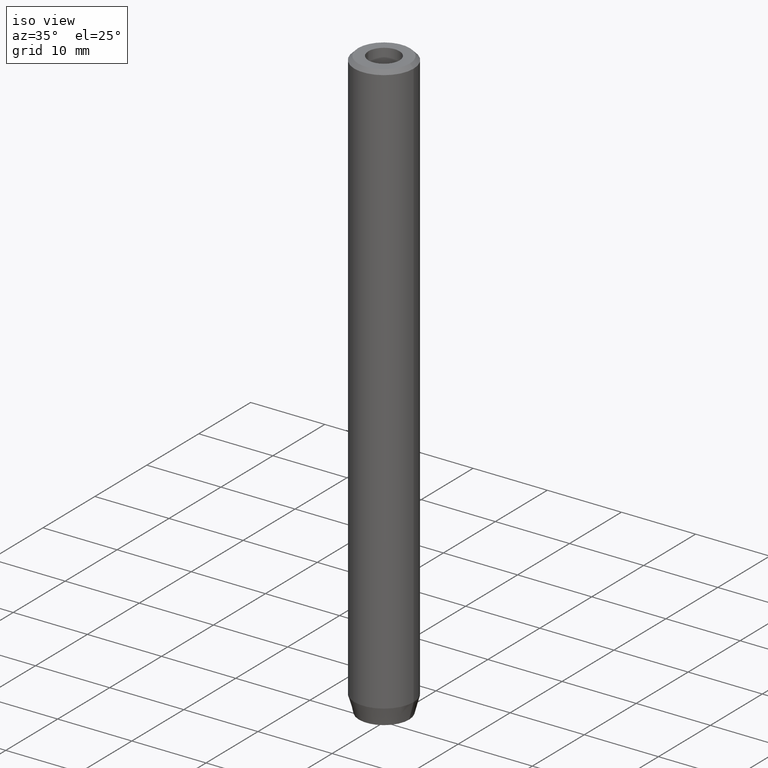
[diagram: clean part render]
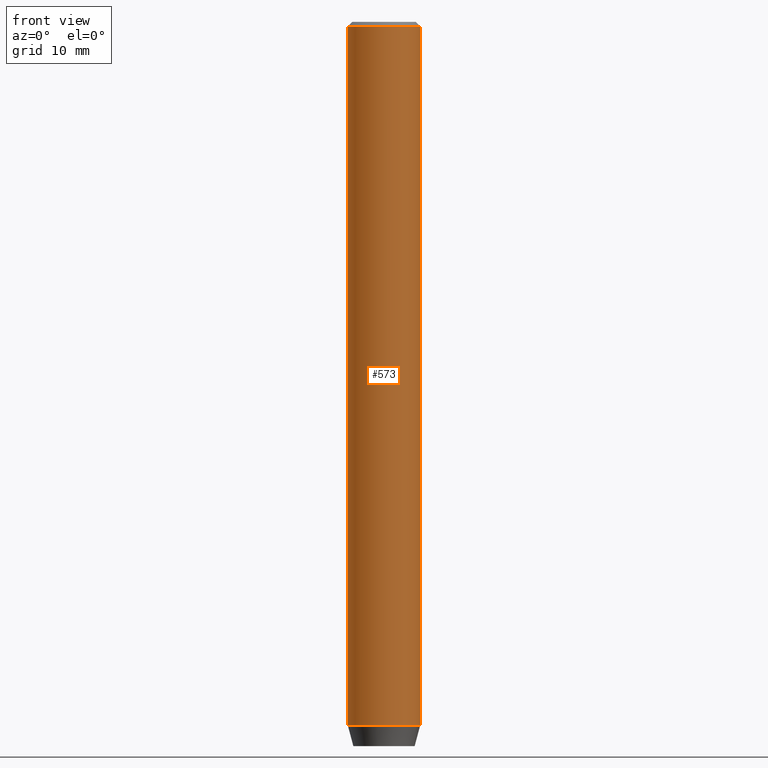
[diagram: tour spotlight — one face highlighted and labeled with its STEP entity id]
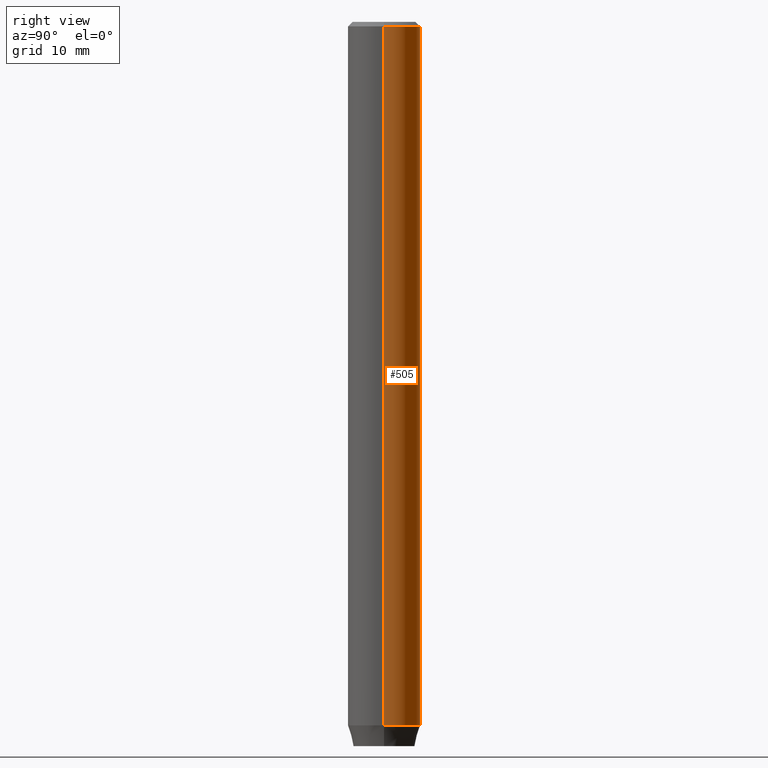
[diagram: tour spotlight — one face highlighted and labeled with its STEP entity id]
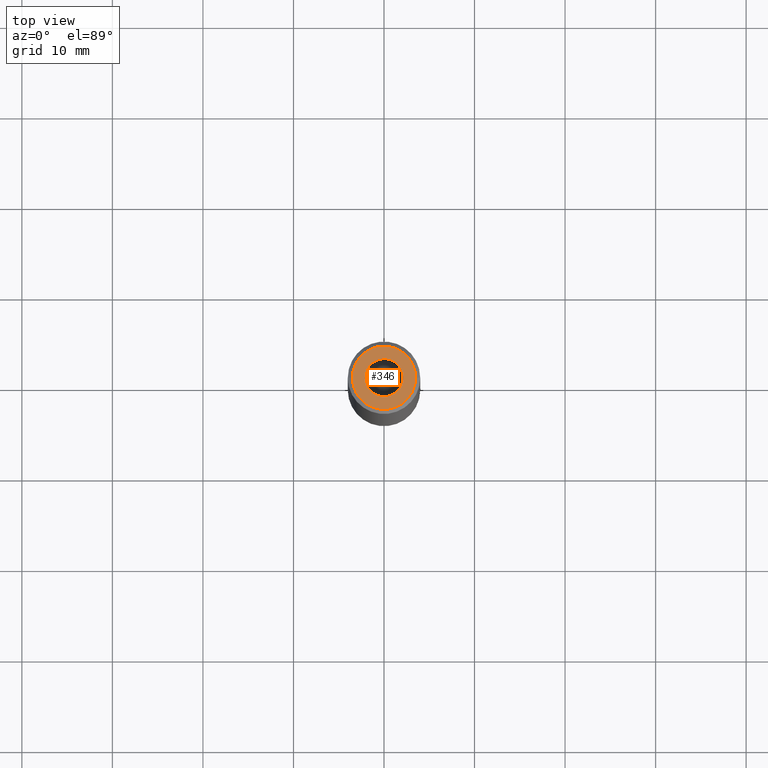
[diagram: tour spotlight — one face highlighted and labeled with its STEP entity id]
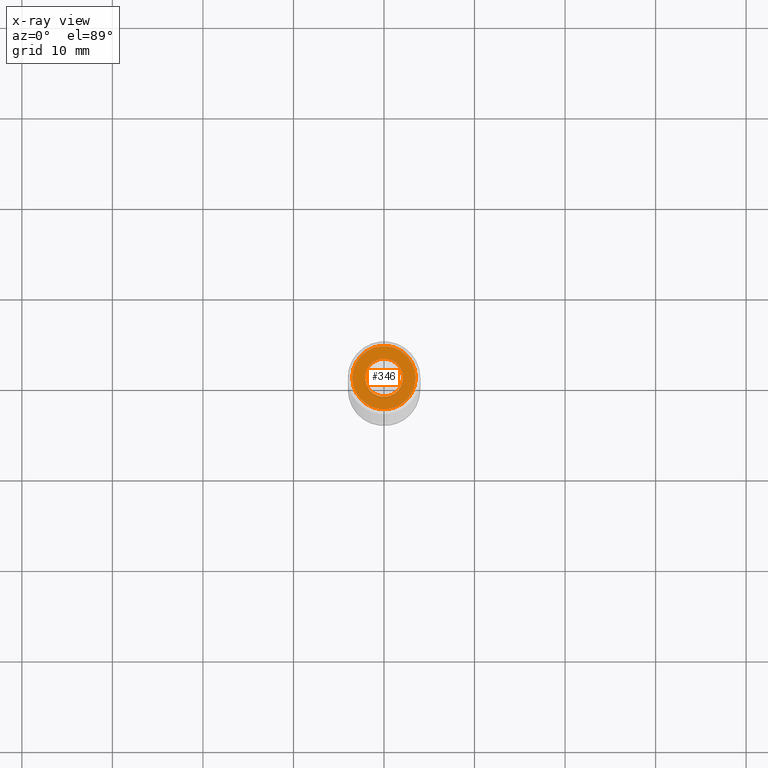
[diagram: x-ray of the same camera — body ghosted, this tour face saturated]
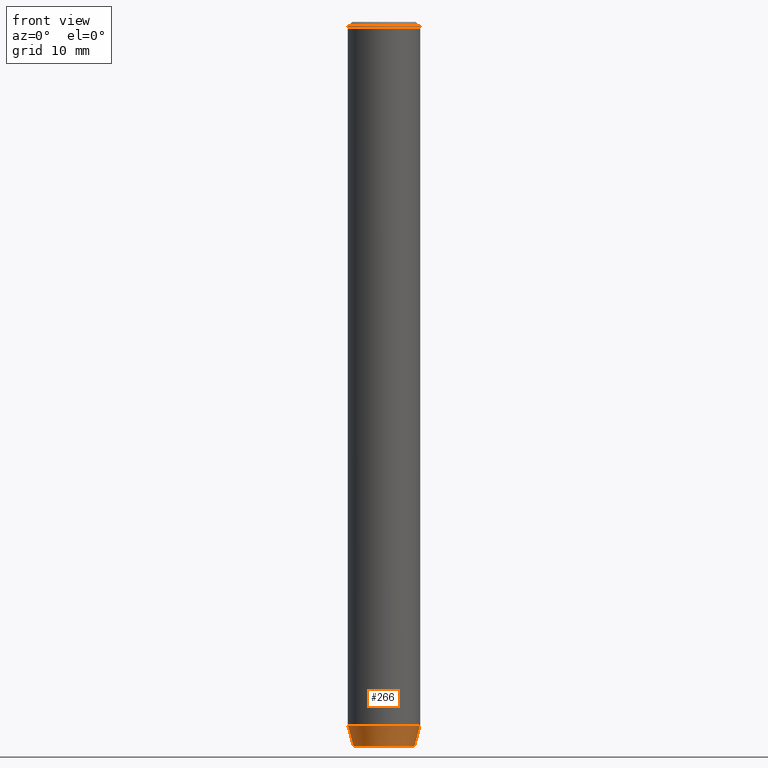
[diagram: tour spotlight — one face highlighted and labeled with its STEP entity id]
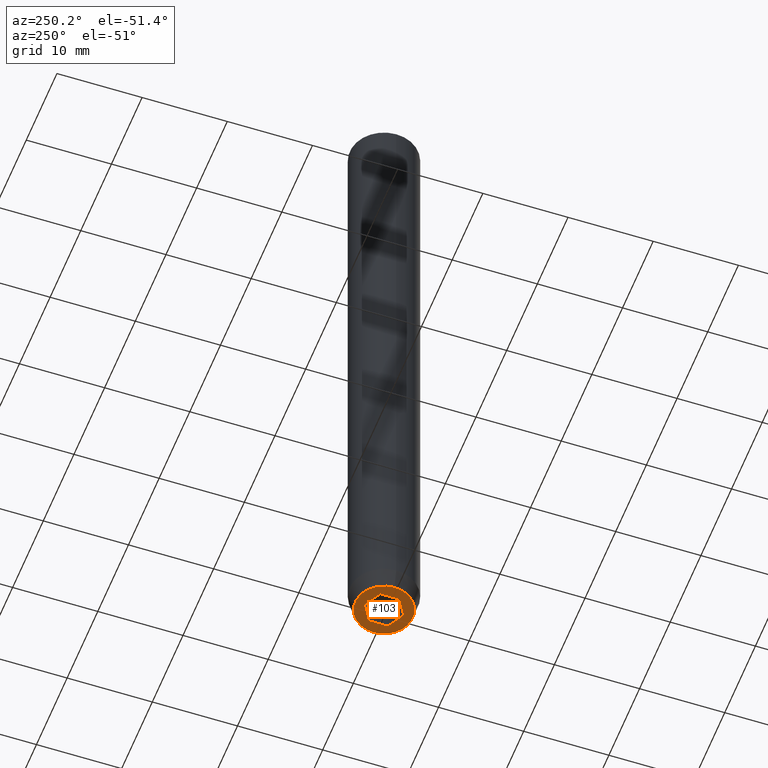
[diagram: tour spotlight — one face highlighted and labeled with its STEP entity id]
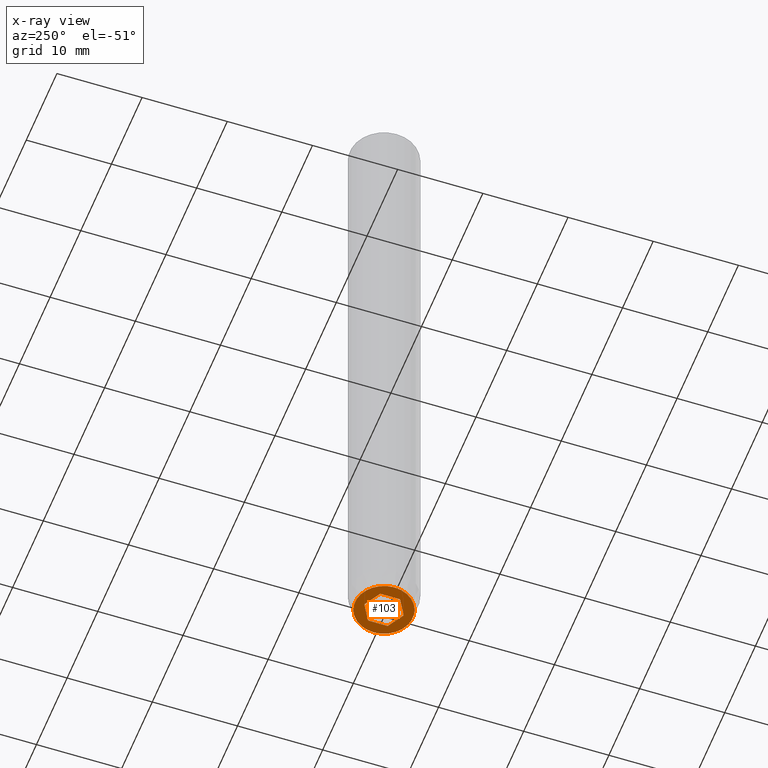
[diagram: x-ray of the same camera — body ghosted, this tour face saturated]
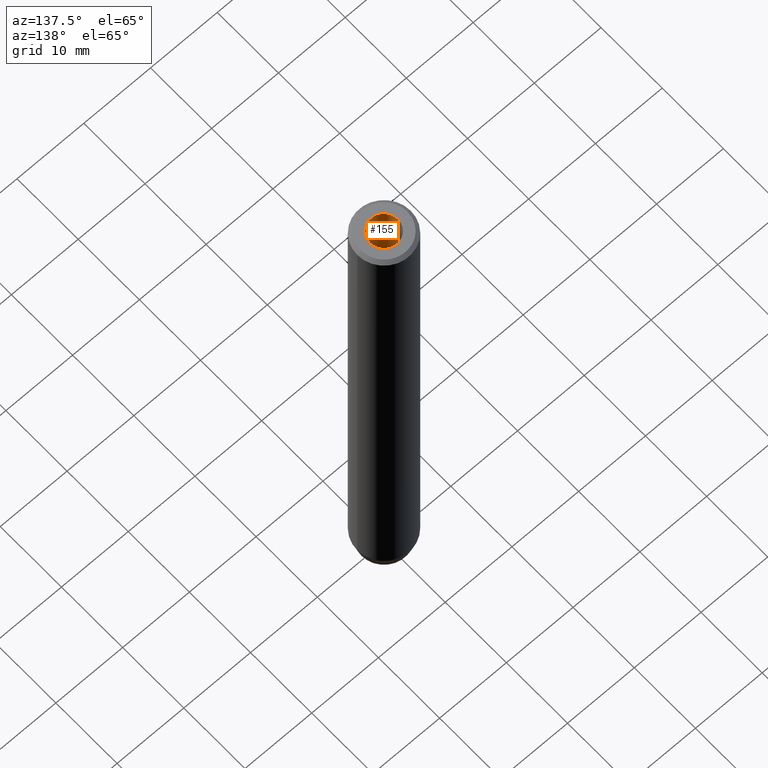
[diagram: tour spotlight — one face highlighted and labeled with its STEP entity id]
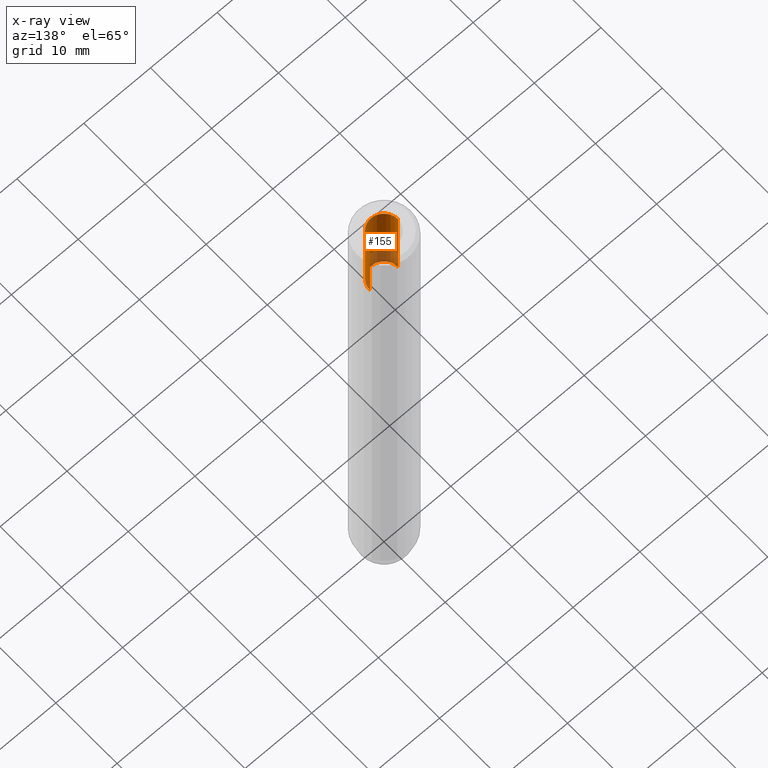
[diagram: x-ray of the same camera — body ghosted, this tour face saturated]
A machine part: a face-by-face anatomy tour. The part has 19 B-rep faces; the first image is the clean iso view, then the 6 largest visible faces are spotlighted one at a time (largest first), each with its STEP entity span.

Face 1 — front view, entity #573. In plain terms, the highlighted cylindrical surface (edge-blend (fillet) strip) has radius 4 mm, axis along (-0, -0, 1).
Definition (entity closure, byte-faithful):
#10 = DIRECTION ( 'NONE',  ( 1.000000000000000000, 0.000000000000000000, 0.000000000000000000 ) ) ;
#35 = LINE ( 'NONE', #214, #391 ) ;
#42 = AXIS2_PLACEMENT_3D ( 'NONE', #341, #390, #169 ) ;
#48 = CARTESIAN_POINT ( 'NONE',  ( -4.000000000000000000, 4.898587196589412829E-16, -0.4999999999999900080 ) ) ;
#55 = AXIS2_PLACEMENT_3D ( 'NONE', #361, #549, #100 ) ;
#78 = FACE_OUTER_BOUND ( 'NONE', #259, .T. ) ;
#100 = DIRECTION ( 'NONE',  ( 1.000000000000000000, 0.000000000000000000, 0.000000000000000000 ) ) ;
#126 = EDGE_CURVE ( 'NONE', #256, #472, #344, .T. ) ;
#153 = DIRECTION ( 'NONE',  ( -0.000000000000000000, -0.000000000000000000, 1.000000000000000000 ) ) ;
#168 = ORIENTED_EDGE ( 'NONE', *, *, #541, .T. ) ;
#169 = DIRECTION ( 'NONE',  ( 1.000000000000000000, 0.000000000000000000, 0.000000000000000000 ) ) ;
#176 = ORIENTED_EDGE ( 'NONE', *, *, #527, .F. ) ;
#207 = AXIS2_PLACEMENT_3D ( 'NONE', #423, #153, #10 ) ;
#214 = CARTESIAN_POINT ( 'NONE',  ( 4.000000000000000000, 0.000000000000000000, 0.000000000000000000 ) ) ;
#231 = CIRCLE ( 'NONE', #55, 4.000000000000000000 ) ;
#256 = VERTEX_POINT ( 'NONE', #475 ) ;
#259 = EDGE_LOOP ( 'NONE', ( #176, #476, #443, #168 ) ) ;
#302 = DIRECTION ( 'NONE',  ( -0.000000000000000000, -0.000000000000000000, 1.000000000000000000 ) ) ;
#322 = DIRECTION ( 'NONE',  ( -0.000000000000000000, -0.000000000000000000, 1.000000000000000000 ) ) ;
#326 = EDGE_CURVE ( 'NONE', #472, #406, #35, .T. ) ;
#341 = CARTESIAN_POINT ( 'NONE',  ( 0.000000000000000000, 0.000000000000000000, 0.000000000000000000 ) ) ;
#344 = CIRCLE ( 'NONE', #207, 4.000000000000000000 ) ;
#361 = CARTESIAN_POINT ( 'NONE',  ( 0.000000000000000000, 0.000000000000000000, -0.4999999999999900080 ) ) ;
#373 = LINE ( 'NONE', #554, #491 ) ;
#390 = DIRECTION ( 'NONE',  ( -0.000000000000000000, -0.000000000000000000, 1.000000000000000000 ) ) ;
#391 = VECTOR ( 'NONE', #302, 1000.000000000000000 ) ;
#406 = VERTEX_POINT ( 'NONE', #450 ) ;
#410 = VERTEX_POINT ( 'NONE', #48 ) ;
#423 = CARTESIAN_POINT ( 'NONE',  ( 0.000000000000000000, 0.000000000000000000, -77.70000000000001705 ) ) ;
#443 = ORIENTED_EDGE ( 'NONE', *, *, #326, .T. ) ;
#450 = CARTESIAN_POINT ( 'NONE',  ( 4.000000000000000000, 0.000000000000000000, -0.4999999999999900080 ) ) ;
#472 = VERTEX_POINT ( 'NONE', #504 ) ;
#475 = CARTESIAN_POINT ( 'NONE',  ( -4.000000000000000000, 4.898587196589412829E-16, -77.70000000000001705 ) ) ;
#476 = ORIENTED_EDGE ( 'NONE', *, *, #126, .T. ) ;
#491 = VECTOR ( 'NONE', #322, 1000.000000000000000 ) ;
#504 = CARTESIAN_POINT ( 'NONE',  ( 4.000000000000000000, 0.000000000000000000, -77.70000000000001705 ) ) ;
#527 = EDGE_CURVE ( 'NONE', #256, #410, #373, .T. ) ;
#541 = EDGE_CURVE ( 'NONE', #406, #410, #231, .T. ) ;
#549 = DIRECTION ( 'NONE',  ( 0.000000000000000000, 0.000000000000000000, -1.000000000000000000 ) ) ;
#554 = CARTESIAN_POINT ( 'NONE',  ( -4.000000000000000000, 4.898587196589412829E-16, 0.000000000000000000 ) ) ;
#567 = CYLINDRICAL_SURFACE ( 'NONE', #42, 4.000000000000000000 ) ;
#573 = ADVANCED_FACE ( 'NONE', ( #78 ), #567, .T. ) ;

Face 2 — right view, entity #505. In plain terms, the highlighted cylindrical surface (edge-blend (fillet) strip) has radius 4 mm, axis along (-0, -0, 1).
Definition (entity closure, byte-faithful):
#27 = DIRECTION ( 'NONE',  ( 1.000000000000000000, 0.000000000000000000, 0.000000000000000000 ) ) ;
#35 = LINE ( 'NONE', #214, #391 ) ;
#38 = AXIS2_PLACEMENT_3D ( 'NONE', #328, #453, #407 ) ;
#48 = CARTESIAN_POINT ( 'NONE',  ( -4.000000000000000000, 4.898587196589412829E-16, -0.4999999999999900080 ) ) ;
#91 = AXIS2_PLACEMENT_3D ( 'NONE', #290, #565, #27 ) ;
#102 = ORIENTED_EDGE ( 'NONE', *, *, #170, .T. ) ;
#149 = CARTESIAN_POINT ( 'NONE',  ( 0.000000000000000000, 0.000000000000000000, -0.4999999999999900080 ) ) ;
#170 = EDGE_CURVE ( 'NONE', #472, #256, #220, .T. ) ;
#179 = ORIENTED_EDGE ( 'NONE', *, *, #422, .T. ) ;
#184 = DIRECTION ( 'NONE',  ( 1.000000000000000000, 0.000000000000000000, 0.000000000000000000 ) ) ;
#198 = EDGE_LOOP ( 'NONE', ( #102, #444, #179, #300 ) ) ;
#214 = CARTESIAN_POINT ( 'NONE',  ( 4.000000000000000000, 0.000000000000000000, 0.000000000000000000 ) ) ;
#220 = CIRCLE ( 'NONE', #91, 4.000000000000000000 ) ;
#240 = CYLINDRICAL_SURFACE ( 'NONE', #38, 4.000000000000000000 ) ;
#241 = CIRCLE ( 'NONE', #483, 4.000000000000000000 ) ;
#256 = VERTEX_POINT ( 'NONE', #475 ) ;
#290 = CARTESIAN_POINT ( 'NONE',  ( 0.000000000000000000, 0.000000000000000000, -77.70000000000001705 ) ) ;
#300 = ORIENTED_EDGE ( 'NONE', *, *, #326, .F. ) ;
#302 = DIRECTION ( 'NONE',  ( -0.000000000000000000, -0.000000000000000000, 1.000000000000000000 ) ) ;
#322 = DIRECTION ( 'NONE',  ( -0.000000000000000000, -0.000000000000000000, 1.000000000000000000 ) ) ;
#326 = EDGE_CURVE ( 'NONE', #472, #406, #35, .T. ) ;
#328 = CARTESIAN_POINT ( 'NONE',  ( 0.000000000000000000, 0.000000000000000000, 0.000000000000000000 ) ) ;
#373 = LINE ( 'NONE', #554, #491 ) ;
#391 = VECTOR ( 'NONE', #302, 1000.000000000000000 ) ;
#406 = VERTEX_POINT ( 'NONE', #450 ) ;
#407 = DIRECTION ( 'NONE',  ( 1.000000000000000000, 0.000000000000000000, 0.000000000000000000 ) ) ;
#410 = VERTEX_POINT ( 'NONE', #48 ) ;
#422 = EDGE_CURVE ( 'NONE', #410, #406, #241, .T. ) ;
#444 = ORIENTED_EDGE ( 'NONE', *, *, #527, .T. ) ;
#450 = CARTESIAN_POINT ( 'NONE',  ( 4.000000000000000000, 0.000000000000000000, -0.4999999999999900080 ) ) ;
#453 = DIRECTION ( 'NONE',  ( -0.000000000000000000, -0.000000000000000000, 1.000000000000000000 ) ) ;
#457 = FACE_OUTER_BOUND ( 'NONE', #198, .T. ) ;
#472 = VERTEX_POINT ( 'NONE', #504 ) ;
#475 = CARTESIAN_POINT ( 'NONE',  ( -4.000000000000000000, 4.898587196589412829E-16, -77.70000000000001705 ) ) ;
#483 = AXIS2_PLACEMENT_3D ( 'NONE', #149, #515, #184 ) ;
#491 = VECTOR ( 'NONE', #322, 1000.000000000000000 ) ;
#504 = CARTESIAN_POINT ( 'NONE',  ( 4.000000000000000000, 0.000000000000000000, -77.70000000000001705 ) ) ;
#505 = ADVANCED_FACE ( 'NONE', ( #457 ), #240, .T. ) ;
#515 = DIRECTION ( 'NONE',  ( 0.000000000000000000, 0.000000000000000000, -1.000000000000000000 ) ) ;
#527 = EDGE_CURVE ( 'NONE', #256, #410, #373, .T. ) ;
#554 = CARTESIAN_POINT ( 'NONE',  ( -4.000000000000000000, 4.898587196589412829E-16, 0.000000000000000000 ) ) ;
#565 = DIRECTION ( 'NONE',  ( -0.000000000000000000, -0.000000000000000000, 1.000000000000000000 ) ) ;

Face 3 — top view, entity #346. An x-ray twin of the same camera follows (body ghosted, this face saturated) — the face is partly hidden behind the body. In plain terms, the highlighted planar face has unit normal (0, -0, 1).
Definition (entity closure, byte-faithful):
#5 = VERTEX_POINT ( 'NONE', #496 ) ;
#11 = DIRECTION ( 'NONE',  ( -0.000000000000000000, -0.000000000000000000, 1.000000000000000000 ) ) ;
#23 = VERTEX_POINT ( 'NONE', #134 ) ;
#32 = FACE_BOUND ( 'NONE', #551, .T. ) ;
#36 = EDGE_CURVE ( 'NONE', #473, #76, #260, .T. ) ;
#52 = CARTESIAN_POINT ( 'NONE',  ( -3.500000000000010214, 0.000000000000000000, 0.000000000000000000 ) ) ;
#65 = CIRCLE ( 'NONE', #324, 2.099999999999998757 ) ;
#76 = VERTEX_POINT ( 'NONE', #52 ) ;
#83 = CIRCLE ( 'NONE', #398, 3.500000000000010214 ) ;
#90 = DIRECTION ( 'NONE',  ( -0.000000000000000000, -0.000000000000000000, 1.000000000000000000 ) ) ;
#92 = EDGE_LOOP ( 'NONE', ( #467, #156 ) ) ;
#111 = AXIS2_PLACEMENT_3D ( 'NONE', #244, #201, #238 ) ;
#134 = CARTESIAN_POINT ( 'NONE',  ( 2.099999999999998757, 0.000000000000000000, -1.990051048614449116E-16 ) ) ;
#156 = ORIENTED_EDGE ( 'NONE', *, *, #36, .T. ) ;
#175 = FACE_OUTER_BOUND ( 'NONE', #92, .T. ) ;
#195 = DIRECTION ( 'NONE',  ( 1.000000000000000000, 0.000000000000000000, 0.000000000000000000 ) ) ;
#201 = DIRECTION ( 'NONE',  ( -0.000000000000000000, -0.000000000000000000, 1.000000000000000000 ) ) ;
#210 = EDGE_CURVE ( 'NONE', #5, #23, #500, .T. ) ;
#211 = DIRECTION ( 'NONE',  ( 1.000000000000000000, 0.000000000000000000, 0.000000000000000000 ) ) ;
#227 = DIRECTION ( 'NONE',  ( -0.000000000000000000, -0.000000000000000000, 1.000000000000000000 ) ) ;
#232 = CARTESIAN_POINT ( 'NONE',  ( 0.000000000000000000, 0.000000000000000000, -1.990051048614449116E-16 ) ) ;
#238 = DIRECTION ( 'NONE',  ( 1.000000000000000000, 0.000000000000000000, 0.000000000000000000 ) ) ;
#244 = CARTESIAN_POINT ( 'NONE',  ( 0.000000000000000000, 0.000000000000000000, -1.990051048614449116E-16 ) ) ;
#248 = ORIENTED_EDGE ( 'NONE', *, *, #469, .F. ) ;
#260 = CIRCLE ( 'NONE', #381, 3.500000000000010214 ) ;
#279 = CARTESIAN_POINT ( 'NONE',  ( 3.500000000000010214, 4.592425496802580875E-16, 0.000000000000000000 ) ) ;
#280 = CARTESIAN_POINT ( 'NONE',  ( 0.000000000000000000, 0.000000000000000000, 0.000000000000000000 ) ) ;
#324 = AXIS2_PLACEMENT_3D ( 'NONE', #232, #11, #195 ) ;
#346 = ADVANCED_FACE ( 'NONE', ( #32, #175 ), #536, .T. ) ;
#381 = AXIS2_PLACEMENT_3D ( 'NONE', #280, #90, #503 ) ;
#385 = DIRECTION ( 'NONE',  ( 0.000000000000000000, -0.000000000000000000, 1.000000000000000000 ) ) ;
#386 = ORIENTED_EDGE ( 'NONE', *, *, #210, .F. ) ;
#398 = AXIS2_PLACEMENT_3D ( 'NONE', #403, #227, #520 ) ;
#403 = CARTESIAN_POINT ( 'NONE',  ( 0.000000000000000000, 0.000000000000000000, 0.000000000000000000 ) ) ;
#411 = EDGE_CURVE ( 'NONE', #76, #473, #83, .T. ) ;
#467 = ORIENTED_EDGE ( 'NONE', *, *, #411, .T. ) ;
#469 = EDGE_CURVE ( 'NONE', #23, #5, #65, .T. ) ;
#473 = VERTEX_POINT ( 'NONE', #279 ) ;
#496 = CARTESIAN_POINT ( 'NONE',  ( -2.099999999999998757, 2.571758278209439985E-16, -1.990051048614449116E-16 ) ) ;
#500 = CIRCLE ( 'NONE', #111, 2.099999999999998757 ) ;
#503 = DIRECTION ( 'NONE',  ( 1.000000000000000000, 0.000000000000000000, 0.000000000000000000 ) ) ;
#508 = AXIS2_PLACEMENT_3D ( 'NONE', #582, #385, #211 ) ;
#520 = DIRECTION ( 'NONE',  ( 1.000000000000000000, 0.000000000000000000, 0.000000000000000000 ) ) ;
#536 = PLANE ( 'NONE',  #508 ) ;
#551 = EDGE_LOOP ( 'NONE', ( #248, #386 ) ) ;
#582 = CARTESIAN_POINT ( 'NONE',  ( 0.000000000000000000, 0.000000000000000000, 0.000000000000000000 ) ) ;

Face 4 — front view, entity #266. In plain terms, the highlighted conical surface has half-angle 15 deg.
Definition (entity closure, byte-faithful):
#2 = EDGE_CURVE ( 'NONE', #362, #129, #447, .T. ) ;
#10 = DIRECTION ( 'NONE',  ( 1.000000000000000000, 0.000000000000000000, 0.000000000000000000 ) ) ;
#41 = CARTESIAN_POINT ( 'NONE',  ( 0.000000000000000000, 0.000000000000000000, -77.70000000000001705 ) ) ;
#46 = DIRECTION ( 'NONE',  ( -0.000000000000000000, -0.000000000000000000, 1.000000000000000000 ) ) ;
#47 = ORIENTED_EDGE ( 'NONE', *, *, #126, .F. ) ;
#126 = EDGE_CURVE ( 'NONE', #256, #472, #344, .T. ) ;
#129 = VERTEX_POINT ( 'NONE', #419 ) ;
#153 = DIRECTION ( 'NONE',  ( -0.000000000000000000, -0.000000000000000000, 1.000000000000000000 ) ) ;
#173 = ORIENTED_EDGE ( 'NONE', *, *, #577, .F. ) ;
#203 = LINE ( 'NONE', #334, #208 ) ;
#207 = AXIS2_PLACEMENT_3D ( 'NONE', #423, #153, #10 ) ;
#208 = VECTOR ( 'NONE', #379, 1000.000000000000114 ) ;
#224 = ORIENTED_EDGE ( 'NONE', *, *, #2, .T. ) ;
#234 = DIRECTION ( 'NONE',  ( 1.000000000000000000, 0.000000000000000000, 0.000000000000000000 ) ) ;
#256 = VERTEX_POINT ( 'NONE', #475 ) ;
#266 = ADVANCED_FACE ( 'NONE', ( #310 ), #268, .T. ) ;
#268 = CONICAL_SURFACE ( 'NONE', #432, 4.000000000000000000, 0.2617993877991512397 ) ;
#308 = LINE ( 'NONE', #574, #350 ) ;
#310 = FACE_OUTER_BOUND ( 'NONE', #524, .T. ) ;
#334 = CARTESIAN_POINT ( 'NONE',  ( -4.000000000000000000, 4.898587196589412829E-16, -77.70000000000001705 ) ) ;
#343 = DIRECTION ( 'NONE',  ( 1.000000000000000000, 0.000000000000000000, 0.000000000000000000 ) ) ;
#344 = CIRCLE ( 'NONE', #207, 4.000000000000000000 ) ;
#350 = VECTOR ( 'NONE', #580, 1000.000000000000114 ) ;
#362 = VERTEX_POINT ( 'NONE', #587 ) ;
#366 = EDGE_CURVE ( 'NONE', #129, #472, #308, .T. ) ;
#379 = DIRECTION ( 'NONE',  ( -0.2588190451025225158, 3.169619151431785895E-17, 0.9659258262890677571 ) ) ;
#405 = CARTESIAN_POINT ( 'NONE',  ( 0.000000000000000000, 0.000000000000000000, -79.99999999999998579 ) ) ;
#419 = CARTESIAN_POINT ( 'NONE',  ( 3.383716857408421763, 0.000000000000000000, -79.99999999999998579 ) ) ;
#423 = CARTESIAN_POINT ( 'NONE',  ( 0.000000000000000000, 0.000000000000000000, -77.70000000000001705 ) ) ;
#432 = AXIS2_PLACEMENT_3D ( 'NONE', #41, #495, #343 ) ;
#435 = ORIENTED_EDGE ( 'NONE', *, *, #366, .T. ) ;
#447 = CIRCLE ( 'NONE', #555, 3.383716857408421763 ) ;
#472 = VERTEX_POINT ( 'NONE', #504 ) ;
#475 = CARTESIAN_POINT ( 'NONE',  ( -4.000000000000000000, 4.898587196589412829E-16, -77.70000000000001705 ) ) ;
#495 = DIRECTION ( 'NONE',  ( -0.000000000000000000, -0.000000000000000000, 1.000000000000000000 ) ) ;
#504 = CARTESIAN_POINT ( 'NONE',  ( 4.000000000000000000, 0.000000000000000000, -77.70000000000001705 ) ) ;
#524 = EDGE_LOOP ( 'NONE', ( #173, #224, #435, #47 ) ) ;
#555 = AXIS2_PLACEMENT_3D ( 'NONE', #405, #46, #234 ) ;
#574 = CARTESIAN_POINT ( 'NONE',  ( 4.000000000000000000, 0.000000000000000000, -77.70000000000001705 ) ) ;
#577 = EDGE_CURVE ( 'NONE', #362, #256, #203, .T. ) ;
#580 = DIRECTION ( 'NONE',  ( 0.2588190451025225158, 0.000000000000000000, 0.9659258262890677571 ) ) ;
#587 = CARTESIAN_POINT ( 'NONE',  ( -3.383716857408421763, 4.521222607617788427E-16, -79.99999999999998579 ) ) ;

Face 5 — auxiliary view, entity #103. An x-ray twin of the same camera follows (body ghosted, this face saturated) — the face is partly hidden behind the body. In plain terms, the highlighted planar face has unit normal (0, 0, -1).
Definition (entity closure, byte-faithful):
#2 = EDGE_CURVE ( 'NONE', #362, #129, #447, .T. ) ;
#6 = DIRECTION ( 'NONE',  ( -0.000000000000000000, -0.000000000000000000, 1.000000000000000000 ) ) ;
#17 = DIRECTION ( 'NONE',  ( -0.8660254037844387076, 0.5000000000000001110, 0.000000000000000000 ) ) ;
#18 = ORIENTED_EDGE ( 'NONE', *, *, #257, .F. ) ;
#19 = CARTESIAN_POINT ( 'NONE',  ( 2.168404344971008868E-16, -2.309401076758503812, -79.99999999999998579 ) ) ;
#25 = LINE ( 'NONE', #205, #480 ) ;
#28 = VECTOR ( 'NONE', #561, 1000.000000000000114 ) ;
#39 = ORIENTED_EDGE ( 'NONE', *, *, #482, .F. ) ;
#46 = DIRECTION ( 'NONE',  ( -0.000000000000000000, -0.000000000000000000, 1.000000000000000000 ) ) ;
#53 = CARTESIAN_POINT ( 'NONE',  ( 0.000000000000000000, 2.309401076758504257, -79.99999999999998579 ) ) ;
#58 = DIRECTION ( 'NONE',  ( 0.000000000000000000, 0.000000000000000000, -1.000000000000000000 ) ) ;
#64 = CARTESIAN_POINT ( 'NONE',  ( 2.000000000000000888, -1.154700538379252572, -79.99999999999998579 ) ) ;
#74 = CIRCLE ( 'NONE', #293, 3.383716857408421763 ) ;
#77 = CARTESIAN_POINT ( 'NONE',  ( -1.000000000000000444, 1.732050807568877637, -79.99999999999998579 ) ) ;
#82 = VERTEX_POINT ( 'NONE', #143 ) ;
#99 = VECTOR ( 'NONE', #299, 1000.000000000000000 ) ;
#103 = ADVANCED_FACE ( 'NONE', ( #181, #506 ), #547, .T. ) ;
#108 = LINE ( 'NONE', #253, #99 ) ;
#124 = EDGE_CURVE ( 'NONE', #428, #439, #479, .T. ) ;
#125 = ORIENTED_EDGE ( 'NONE', *, *, #137, .F. ) ;
#129 = VERTEX_POINT ( 'NONE', #419 ) ;
#137 = EDGE_CURVE ( 'NONE', #439, #575, #25, .T. ) ;
#143 = CARTESIAN_POINT ( 'NONE',  ( 2.000000000000000888, 1.154700538379251462, -79.99999999999998579 ) ) ;
#152 = DIRECTION ( 'NONE',  ( 1.000000000000000000, 0.000000000000000000, 0.000000000000000000 ) ) ;
#160 = VECTOR ( 'NONE', #237, 1000.000000000000000 ) ;
#166 = EDGE_CURVE ( 'NONE', #517, #82, #108, .T. ) ;
#180 = LINE ( 'NONE', #77, #281 ) ;
#181 = FACE_BOUND ( 'NONE', #235, .T. ) ;
#205 = CARTESIAN_POINT ( 'NONE',  ( -1.000000000000000222, -1.732050807568877637, -79.99999999999998579 ) ) ;
#218 = DIRECTION ( 'NONE',  ( 0.8660254037844385966, 0.5000000000000001110, 0.000000000000000000 ) ) ;
#234 = DIRECTION ( 'NONE',  ( 1.000000000000000000, 0.000000000000000000, 0.000000000000000000 ) ) ;
#235 = EDGE_LOOP ( 'NONE', ( #18, #303, #125, #543, #39, #357 ) ) ;
#237 = DIRECTION ( 'NONE',  ( 0.000000000000000000, -1.000000000000000000, 0.000000000000000000 ) ) ;
#245 = ORIENTED_EDGE ( 'NONE', *, *, #497, .F. ) ;
#249 = DIRECTION ( 'NONE',  ( -1.000000000000000000, 0.000000000000000000, -0.000000000000000000 ) ) ;
#253 = CARTESIAN_POINT ( 'NONE',  ( 1.000000000000000444, 1.732050807568877637, -79.99999999999998579 ) ) ;
#257 = EDGE_CURVE ( 'NONE', #441, #517, #180, .T. ) ;
#281 = VECTOR ( 'NONE', #218, 1000.000000000000000 ) ;
#285 = CARTESIAN_POINT ( 'NONE',  ( -1.999999999999997780, 1.154700538379253238, -79.99999999999998579 ) ) ;
#291 = ORIENTED_EDGE ( 'NONE', *, *, #2, .F. ) ;
#292 = CARTESIAN_POINT ( 'NONE',  ( -1.999999999999998668, -1.154700538379252572, -79.99999999999998579 ) ) ;
#293 = AXIS2_PLACEMENT_3D ( 'NONE', #468, #6, #152 ) ;
#299 = DIRECTION ( 'NONE',  ( 0.8660254037844385966, -0.5000000000000001110, 0.000000000000000000 ) ) ;
#303 = ORIENTED_EDGE ( 'NONE', *, *, #336, .F. ) ;
#336 = EDGE_CURVE ( 'NONE', #575, #441, #493, .T. ) ;
#352 = EDGE_LOOP ( 'NONE', ( #245, #291 ) ) ;
#357 = ORIENTED_EDGE ( 'NONE', *, *, #166, .F. ) ;
#362 = VERTEX_POINT ( 'NONE', #587 ) ;
#365 = CARTESIAN_POINT ( 'NONE',  ( 2.000000000000000888, 0.000000000000000000, -79.99999999999998579 ) ) ;
#405 = CARTESIAN_POINT ( 'NONE',  ( 0.000000000000000000, 0.000000000000000000, -79.99999999999998579 ) ) ;
#419 = CARTESIAN_POINT ( 'NONE',  ( 3.383716857408421763, 0.000000000000000000, -79.99999999999998579 ) ) ;
#428 = VERTEX_POINT ( 'NONE', #64 ) ;
#430 = CARTESIAN_POINT ( 'NONE',  ( 0.9999999999999997780, -1.732050807568878747, -79.99999999999998579 ) ) ;
#434 = CARTESIAN_POINT ( 'NONE',  ( -1.999999999999998224, 1.126735949052866956E-15, -79.99999999999998579 ) ) ;
#439 = VERTEX_POINT ( 'NONE', #19 ) ;
#441 = VERTEX_POINT ( 'NONE', #285 ) ;
#447 = CIRCLE ( 'NONE', #555, 3.383716857408421763 ) ;
#468 = CARTESIAN_POINT ( 'NONE',  ( 0.000000000000000000, 0.000000000000000000, -79.99999999999998579 ) ) ;
#479 = LINE ( 'NONE', #430, #28 ) ;
#480 = VECTOR ( 'NONE', #17, 999.9999999999998863 ) ;
#482 = EDGE_CURVE ( 'NONE', #82, #428, #559, .T. ) ;
#493 = LINE ( 'NONE', #434, #509 ) ;
#497 = EDGE_CURVE ( 'NONE', #129, #362, #74, .T. ) ;
#506 = FACE_OUTER_BOUND ( 'NONE', #352, .T. ) ;
#509 = VECTOR ( 'NONE', #530, 1000.000000000000000 ) ;
#510 = CARTESIAN_POINT ( 'NONE',  ( 0.000000000000000000, 3.383716857408421763, -79.99999999999998579 ) ) ;
#517 = VERTEX_POINT ( 'NONE', #53 ) ;
#530 = DIRECTION ( 'NONE',  ( 5.633679745264339711E-16, 1.000000000000000000, 0.000000000000000000 ) ) ;
#531 = AXIS2_PLACEMENT_3D ( 'NONE', #510, #58, #249 ) ;
#543 = ORIENTED_EDGE ( 'NONE', *, *, #124, .F. ) ;
#547 = PLANE ( 'NONE',  #531 ) ;
#555 = AXIS2_PLACEMENT_3D ( 'NONE', #405, #46, #234 ) ;
#559 = LINE ( 'NONE', #365, #160 ) ;
#561 = DIRECTION ( 'NONE',  ( -0.8660254037844388186, -0.4999999999999996114, 0.000000000000000000 ) ) ;
#575 = VERTEX_POINT ( 'NONE', #292 ) ;
#587 = CARTESIAN_POINT ( 'NONE',  ( -3.383716857408421763, 4.521222607617788427E-16, -79.99999999999998579 ) ) ;

Face 6 — auxiliary view, entity #155. An x-ray twin of the same camera follows (body ghosted, this face saturated) — the face is partly hidden behind the body. In plain terms, the highlighted cylindrical surface (edge-blend (fillet) strip) has radius 2.1 mm, axis along (-0, -0, 1).
Definition (entity closure, byte-faithful):
#5 = VERTEX_POINT ( 'NONE', #496 ) ;
#23 = VERTEX_POINT ( 'NONE', #134 ) ;
#50 = CARTESIAN_POINT ( 'NONE',  ( -2.099999999999997868, 2.571758278209438999E-16, 0.000000000000000000 ) ) ;
#63 = DIRECTION ( 'NONE',  ( 1.000000000000000000, 0.000000000000000000, 0.000000000000000000 ) ) ;
#67 = DIRECTION ( 'NONE',  ( 1.000000000000000000, 0.000000000000000000, 0.000000000000000000 ) ) ;
#85 = EDGE_CURVE ( 'NONE', #514, #5, #401, .T. ) ;
#97 = DIRECTION ( 'NONE',  ( -0.000000000000000000, -0.000000000000000000, 1.000000000000000000 ) ) ;
#107 = CARTESIAN_POINT ( 'NONE',  ( -2.099999999999996980, 2.571758278209438013E-16, -12.50000000000000000 ) ) ;
#111 = AXIS2_PLACEMENT_3D ( 'NONE', #244, #201, #238 ) ;
#134 = CARTESIAN_POINT ( 'NONE',  ( 2.099999999999998757, 0.000000000000000000, -1.990051048614449116E-16 ) ) ;
#155 = ADVANCED_FACE ( 'NONE', ( #478 ), #197, .F. ) ;
#161 = DIRECTION ( 'NONE',  ( -0.000000000000000000, -0.000000000000000000, 1.000000000000000000 ) ) ;
#165 = CARTESIAN_POINT ( 'NONE',  ( 0.000000000000000000, 0.000000000000000000, 0.000000000000000000 ) ) ;
#174 = AXIS2_PLACEMENT_3D ( 'NONE', #338, #526, #67 ) ;
#188 = EDGE_CURVE ( 'NONE', #514, #431, #196, .T. ) ;
#196 = CIRCLE ( 'NONE', #174, 2.099999999999996980 ) ;
#197 = CYLINDRICAL_SURFACE ( 'NONE', #397, 2.099999999999997868 ) ;
#201 = DIRECTION ( 'NONE',  ( -0.000000000000000000, -0.000000000000000000, 1.000000000000000000 ) ) ;
#210 = EDGE_CURVE ( 'NONE', #5, #23, #500, .T. ) ;
#230 = VECTOR ( 'NONE', #321, 1000.000000000000000 ) ;
#238 = DIRECTION ( 'NONE',  ( 1.000000000000000000, 0.000000000000000000, 0.000000000000000000 ) ) ;
#244 = CARTESIAN_POINT ( 'NONE',  ( 0.000000000000000000, 0.000000000000000000, -1.990051048614449116E-16 ) ) ;
#270 = ORIENTED_EDGE ( 'NONE', *, *, #85, .T. ) ;
#321 = DIRECTION ( 'NONE',  ( -0.000000000000000000, -0.000000000000000000, 1.000000000000000000 ) ) ;
#338 = CARTESIAN_POINT ( 'NONE',  ( 0.000000000000000000, 0.000000000000000000, -12.50000000000000000 ) ) ;
#363 = CARTESIAN_POINT ( 'NONE',  ( 2.099999999999997868, 0.000000000000000000, 0.000000000000000000 ) ) ;
#397 = AXIS2_PLACEMENT_3D ( 'NONE', #165, #161, #63 ) ;
#401 = LINE ( 'NONE', #50, #230 ) ;
#416 = CARTESIAN_POINT ( 'NONE',  ( 2.099999999999996980, 0.000000000000000000, -12.50000000000000000 ) ) ;
#424 = ORIENTED_EDGE ( 'NONE', *, *, #210, .T. ) ;
#431 = VERTEX_POINT ( 'NONE', #416 ) ;
#442 = EDGE_CURVE ( 'NONE', #431, #23, #464, .T. ) ;
#464 = LINE ( 'NONE', #363, #579 ) ;
#478 = FACE_OUTER_BOUND ( 'NONE', #488, .T. ) ;
#486 = ORIENTED_EDGE ( 'NONE', *, *, #188, .F. ) ;
#488 = EDGE_LOOP ( 'NONE', ( #486, #270, #424, #519 ) ) ;
#496 = CARTESIAN_POINT ( 'NONE',  ( -2.099999999999998757, 2.571758278209439985E-16, -1.990051048614449116E-16 ) ) ;
#500 = CIRCLE ( 'NONE', #111, 2.099999999999998757 ) ;
#514 = VERTEX_POINT ( 'NONE', #107 ) ;
#519 = ORIENTED_EDGE ( 'NONE', *, *, #442, .F. ) ;
#526 = DIRECTION ( 'NONE',  ( -0.000000000000000000, -0.000000000000000000, 1.000000000000000000 ) ) ;
#579 = VECTOR ( 'NONE', #97, 1000.000000000000000 ) ;